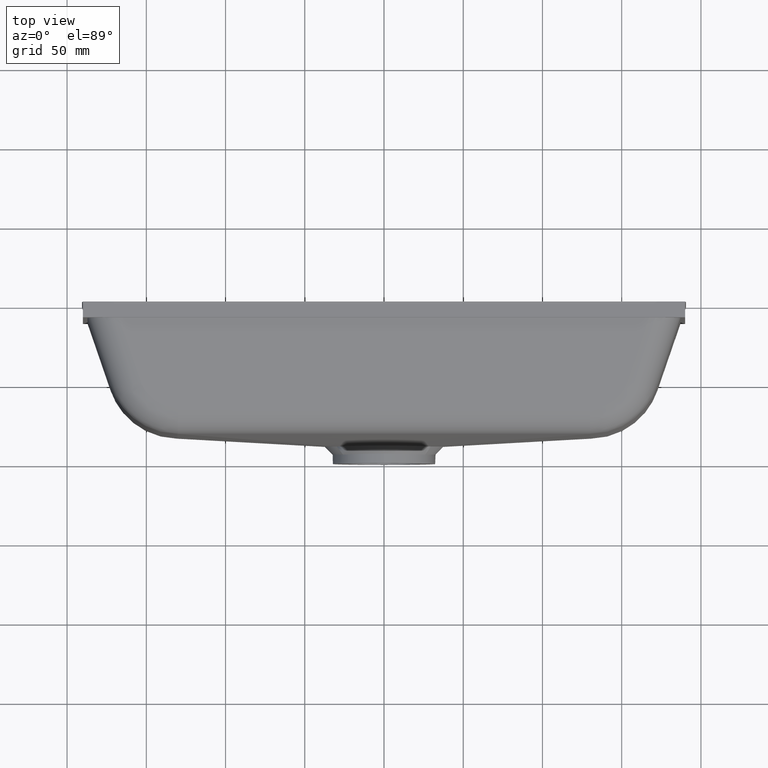
[diagram: clean part render]
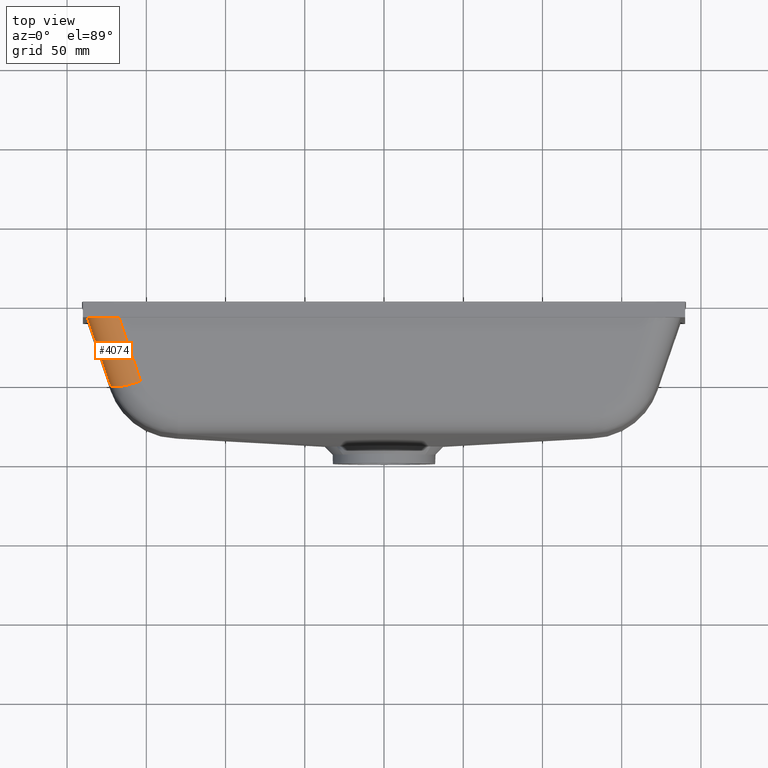
[diagram: same view with one face highlighted and labeled with its STEP entity id]
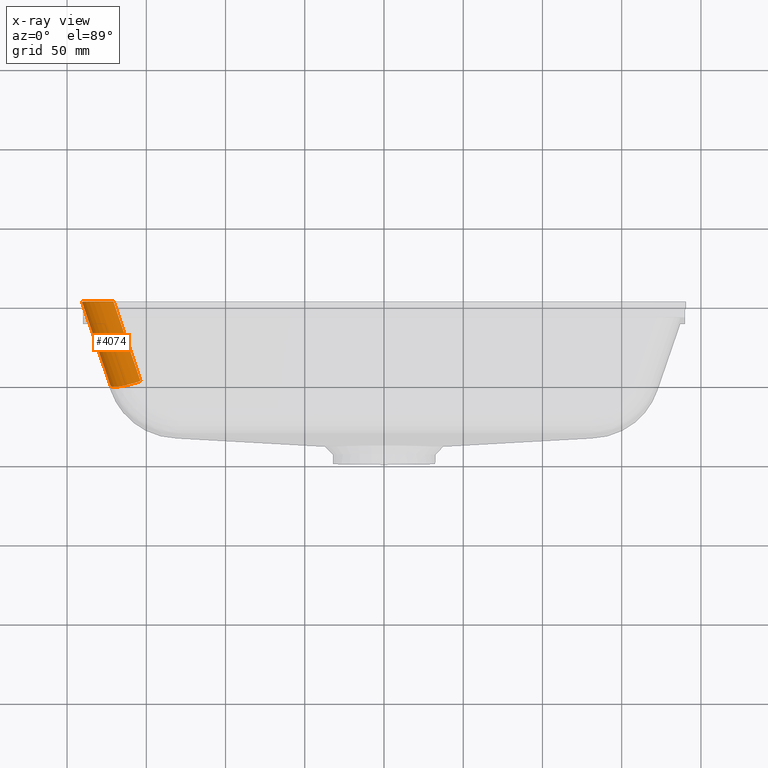
[diagram: x-ray of the same camera — body ghosted, the highlighted face saturated]
A machine part, top view. The second image highlights one B-rep face of the part: STEP entity #4074.
The next image is the same camera in x-ray: the body ghosted, the highlighted face saturated — about 0% of this face is hidden behind the body in this view.
In plain terms, the highlighted cylindrical surface (edge-blend (fillet) strip) has radius 20 mm, axis along (0.318, -0.9287, -0.1908).
Its self-contained STEP definition (entity closure, byte-faithful):
#128 = LINE ( 'NONE', #2107, #1584 ) ;
#435 = DIRECTION ( 'NONE',  ( -0.3180393894549257700, 0.9286750172083815300, 0.1908236336729559900 ) ) ;
#763 = CYLINDRICAL_SURFACE ( 'NONE', #2081, 20.00000000000000400 ) ;
#821 = CARTESIAN_POINT ( 'NONE',  ( -134.7049165952850000, -101.3967767835908800, 78.95611935466662600 ) ) ;
#1399 = EDGE_CURVE ( 'NONE', #3484, #2091, #128, .T. ) ;
#1584 = VECTOR ( 'NONE', #435, 999.9999999999998900 ) ;
#1642 = CARTESIAN_POINT ( 'NONE',  ( -170.8084312358950600, 0.0000000000000000000, 120.2089265117187900 ) ) ;
#1827 = CARTESIAN_POINT ( 'NONE',  ( -153.6422290650790500, -50.12531033878256200, 109.9092052092291700 ) ) ;
#1872 = EDGE_CURVE ( 'NONE', #2091, #6306, #2202, .T. ) ;
#1889 = DIRECTION ( 'NONE',  ( 0.3180393894549257700, -0.9286750172083815300, -0.1908236336729559900 ) ) ;
#2081 = AXIS2_PLACEMENT_3D ( 'NONE', #821, #5857, #3546 ) ;
#2091 = VERTEX_POINT ( 'NONE', #5223 ) ;
#2107 = CARTESIAN_POINT ( 'NONE',  ( -153.6261063277916900, -107.8766362810246900, 78.95611935466662600 ) ) ;
#2155 = EDGE_LOOP ( 'NONE', ( #5201, #6885, #5385, #4920 ) ) ;
#2192 = EDGE_CURVE ( 'NONE', #3484, #2457, #2211, .T. ) ;
#2202 =( BOUNDED_CURVE ( )  B_SPLINE_CURVE ( 3, ( #6569, #6664, #6490, #6453 ),
 .UNSPECIFIED., .F., .T. ) 
 B_SPLINE_CURVE_WITH_KNOTS ( ( 4, 4 ),
 ( 2.633234599433236200, 4.138773159874975100 ),
 .UNSPECIFIED. ) 
 CURVE ( )  GEOMETRIC_REPRESENTATION_ITEM ( )  RATIONAL_B_SPLINE_CURVE ( ( 1.000000000000000000, 0.8198656112821911500, 0.8198656112821911500, 1.000000000000000000 ) ) 
 REPRESENTATION_ITEM ( '' )  );
#2211 = CIRCLE ( 'NONE', #7093, 20.00000000000000400 ) ;
#2313 = LINE ( 'NONE', #2344, #3492 ) ;
#2344 = CARTESIAN_POINT ( 'NONE',  ( -134.7049165952850000, -105.4222627505811800, 98.54681772735268900 ) ) ;
#2457 = VERTEX_POINT ( 'NONE', #1827 ) ;
#3484 = VERTEX_POINT ( 'NONE', #4929 ) ;
#3492 = VECTOR ( 'NONE', #1889, 999.9999999999998900 ) ;
#3546 = DIRECTION ( 'NONE',  ( 0.9460594866253349000, 0.3239929748716903200, 0.0000000000000000000 ) ) ;
#4074 = ADVANCED_FACE ( 'NONE', ( #7273 ), #763, .T. ) ;
#4920 = ORIENTED_EDGE ( 'NONE', *, *, #1872, .F. ) ;
#4929 = CARTESIAN_POINT ( 'NONE',  ( -172.5634187975857700, -52.57968386922608100, 90.31850683654310800 ) ) ;
#4943 = DIRECTION ( 'NONE',  ( 0.9460594866253349000, 0.3239929748716906000, -6.938893903907227400E-016 ) ) ;
#4957 = DIRECTION ( 'NONE',  ( -0.3180393894549257700, 0.9286750172083814100, 0.1908236336729559600 ) ) ;
#4968 = CARTESIAN_POINT ( 'NONE',  ( -153.6422290650790800, -46.09982437179225900, 90.31850683654310800 ) ) ;
#5201 = ORIENTED_EDGE ( 'NONE', *, *, #1399, .F. ) ;
#5223 = CARTESIAN_POINT ( 'NONE',  ( -190.5701598486906200, 0.0000000000000000000, 101.1225514672060400 ) ) ;
#5385 = ORIENTED_EDGE ( 'NONE', *, *, #6268, .F. ) ;
#5857 = DIRECTION ( 'NONE',  ( 0.3180393894549257700, -0.9286750172083814100, -0.1908236336729559600 ) ) ;
#6268 = EDGE_CURVE ( 'NONE', #6306, #2457, #2313, .T. ) ;
#6306 = VERTEX_POINT ( 'NONE', #1642 ) ;
#6453 = CARTESIAN_POINT ( 'NONE',  ( -170.8084312358950600, 0.0000000000000000000, 120.2089265117187900 ) ) ;
#6490 = CARTESIAN_POINT ( 'NONE',  ( -182.5356200652375100, 0.0000000000000000000, 120.2089265117187700 ) ) ;
#6569 = CARTESIAN_POINT ( 'NONE',  ( -190.5701598486906200, 0.0000000000000000000, 101.1225514672060400 ) ) ;
#6664 = CARTESIAN_POINT ( 'NONE',  ( -190.5701598486906500, 0.0000000000000000000, 112.4489656994975600 ) ) ;
#6885 = ORIENTED_EDGE ( 'NONE', *, *, #2192, .T. ) ;
#7093 = AXIS2_PLACEMENT_3D ( 'NONE', #4968, #4957, #4943 ) ;
#7273 = FACE_OUTER_BOUND ( 'NONE', #2155, .T. ) ;